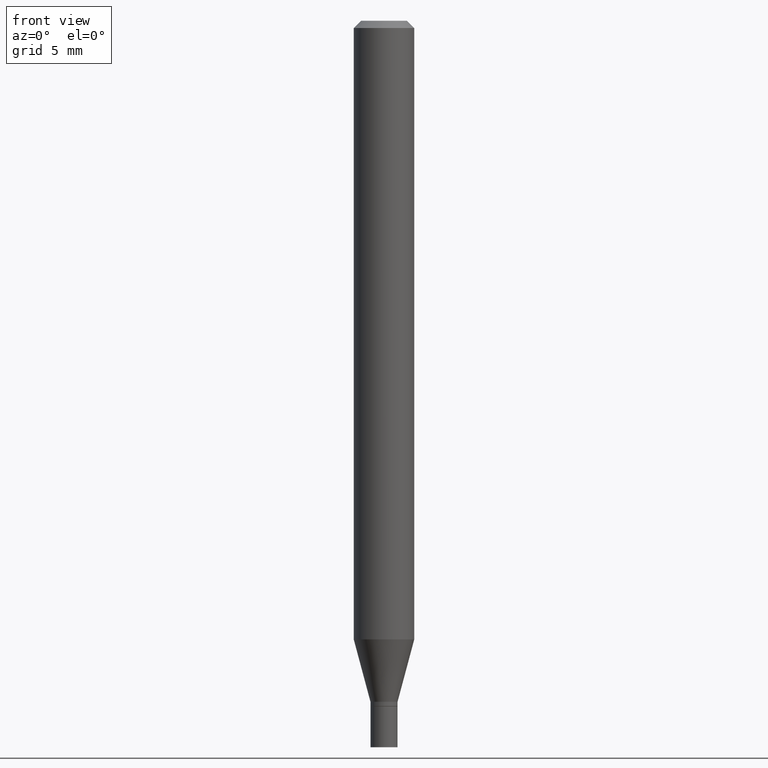
[diagram: clean part render]
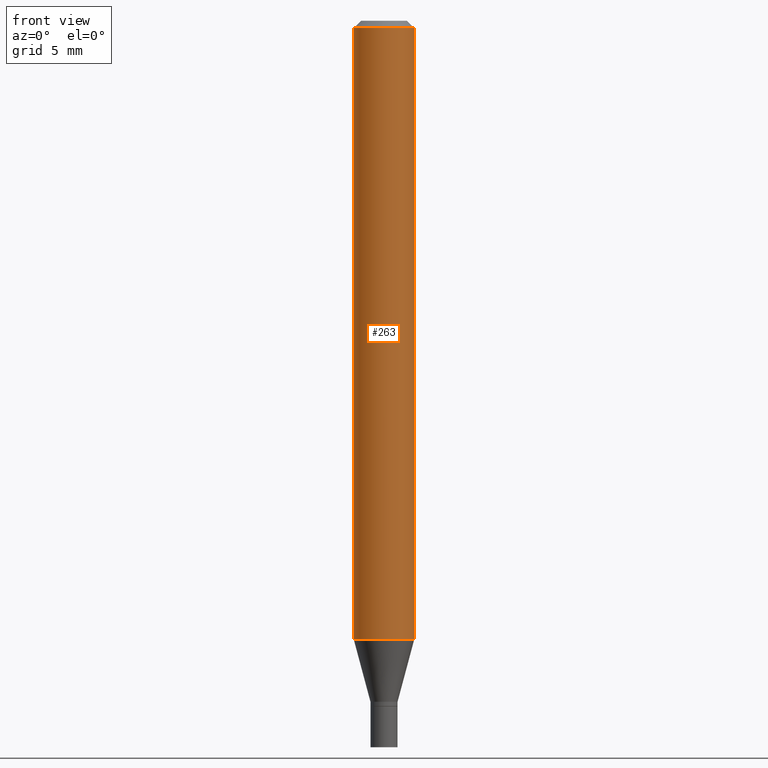
[diagram: same view with one face highlighted and labeled with its STEP entity id]
A machine part, front view. The second image highlights one B-rep face of the part: STEP entity #263.
In plain terms, the highlighted cylindrical surface (edge-blend (fillet) strip) has radius 1.5875 mm, axis along (-0, 0, 1).
Its self-contained STEP definition (entity closure, byte-faithful):
#24 = DIRECTION ( 'NONE',  ( 1.000000000000000000, -6.982962677686266711E-15, 4.876176775795935793E-29 ) ) ;
#32 = DIRECTION ( 'NONE',  ( -2.445468806185136877E-29, 3.491481338843145188E-15, 1.000000000000000000 ) ) ;
#58 = CYLINDRICAL_SURFACE ( 'NONE', #278, 0.06250000000000000000 ) ;
#76 = VERTEX_POINT ( 'NONE', #443 ) ;
#80 = CIRCLE ( 'NONE', #220, 0.06250000000000000000 ) ;
#94 = CARTESIAN_POINT ( 'NONE',  ( 0.000000000000000000, 0.000000000000000000, 0.000000000000000000 ) ) ;
#102 = DIRECTION ( 'NONE',  ( -2.445468806185136597E-29, 3.491481338843145583E-15, 1.000000000000000000 ) ) ;
#108 = VERTEX_POINT ( 'NONE', #276 ) ;
#114 = CARTESIAN_POINT ( 'NONE',  ( 0.06250000000000000000, -4.895909621385532005E-15, -1.277244247138873634 ) ) ;
#129 = DIRECTION ( 'NONE',  ( 1.000000000000000000, -6.982962677686266711E-15, 0.000000000000000000 ) ) ;
#133 = CARTESIAN_POINT ( 'NONE',  ( 3.668203209277705088E-31, -5.237222008264718399E-17, -0.01499999999999999944 ) ) ;
#149 = VECTOR ( 'NONE', #32, 39.37007874015748143 ) ;
#151 = VERTEX_POINT ( 'NONE', #446 ) ;
#158 = VECTOR ( 'NONE', #202, 39.37007874015748143 ) ;
#202 = DIRECTION ( 'NONE',  ( -2.445468806185136877E-29, 3.491481338843145188E-15, 1.000000000000000000 ) ) ;
#209 = EDGE_CURVE ( 'NONE', #151, #440, #390, .T. ) ;
#215 = EDGE_CURVE ( 'NONE', #440, #108, #330, .T. ) ;
#220 = AXIS2_PLACEMENT_3D ( 'NONE', #133, #102, #129 ) ;
#263 = ADVANCED_FACE ( 'NONE', ( #394 ), #58, .T. ) ;
#276 = CARTESIAN_POINT ( 'NONE',  ( 0.06250000000000000000, -4.888073874380388472E-16, -0.01499999999999999944 ) ) ;
#277 = EDGE_CURVE ( 'NONE', #76, #108, #80, .T. ) ;
#278 = AXIS2_PLACEMENT_3D ( 'NONE', #94, #359, #24 ) ;
#282 = EDGE_LOOP ( 'NONE', ( #400, #395, #464, #437 ) ) ;
#284 = DIRECTION ( 'NONE',  ( 1.000000000000000000, -6.982962677686262766E-15, 0.000000000000000000 ) ) ;
#330 = LINE ( 'NONE', #426, #158 ) ;
#331 = EDGE_CURVE ( 'NONE', #151, #76, #364, .T. ) ;
#354 = DIRECTION ( 'NONE',  ( -2.445468806185136597E-29, 3.491481338843145583E-15, 1.000000000000000000 ) ) ;
#359 = DIRECTION ( 'NONE',  ( -2.445468806185136597E-29, 3.491481338843145583E-15, 1.000000000000000000 ) ) ;
#364 = LINE ( 'NONE', #391, #149 ) ;
#368 = AXIS2_PLACEMENT_3D ( 'NONE', #421, #354, #284 ) ;
#390 = CIRCLE ( 'NONE', #368, 0.06250000000000000000 ) ;
#391 = CARTESIAN_POINT ( 'NONE',  ( -0.06250000000000000000, 4.440892098500626162E-16, -3.074334431409316114E-30 ) ) ;
#394 = FACE_OUTER_BOUND ( 'NONE', #282, .T. ) ;
#395 = ORIENTED_EDGE ( 'NONE', *, *, #209, .T. ) ;
#400 = ORIENTED_EDGE ( 'NONE', *, *, #331, .F. ) ;
#421 = CARTESIAN_POINT ( 'NONE',  ( 3.123460964257534823E-29, -4.459474454030139547E-15, -1.277244247138873634 ) ) ;
#426 = CARTESIAN_POINT ( 'NONE',  ( 0.06250000000000000000, -4.364351673553916694E-16, 3.047610484872459871E-30 ) ) ;
#437 = ORIENTED_EDGE ( 'NONE', *, *, #277, .F. ) ;
#440 = VERTEX_POINT ( 'NONE', #114 ) ;
#443 = CARTESIAN_POINT ( 'NONE',  ( -0.06250000000000000000, -1.811834127206330894E-15, -0.01499999999999999944 ) ) ;
#446 = CARTESIAN_POINT ( 'NONE',  ( -0.06250000000000000000, -4.015385244180077719E-15, -1.277244247138873634 ) ) ;
#464 = ORIENTED_EDGE ( 'NONE', *, *, #215, .T. ) ;